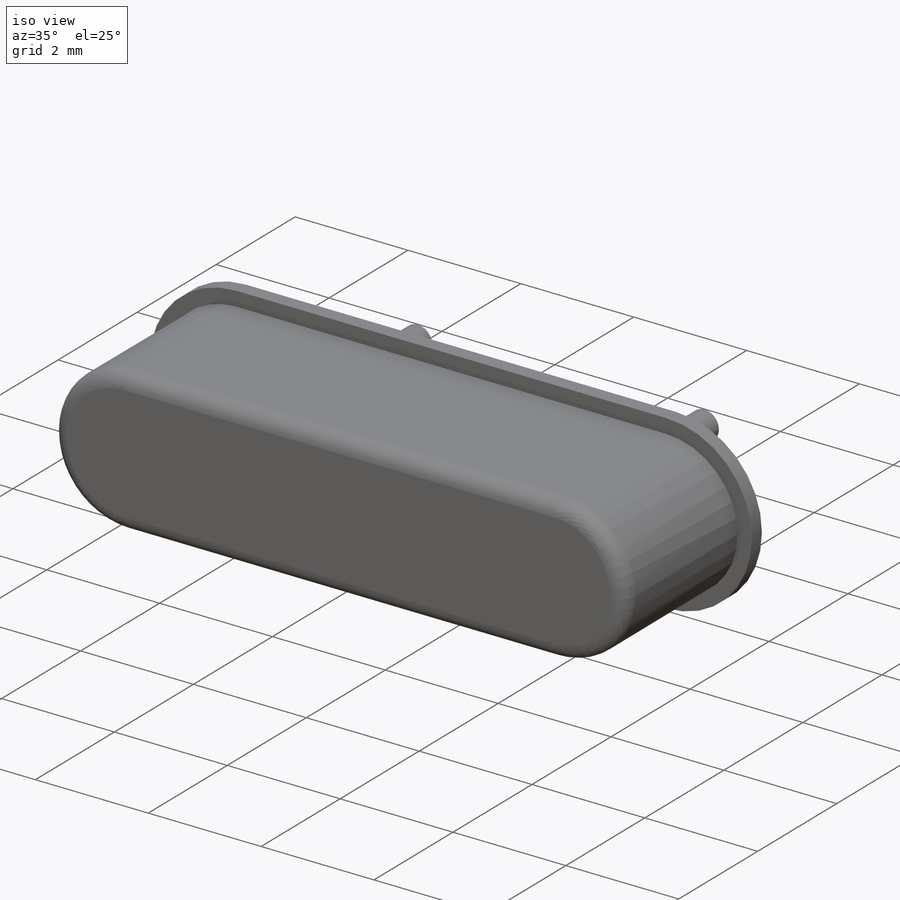
[diagram: iso view]
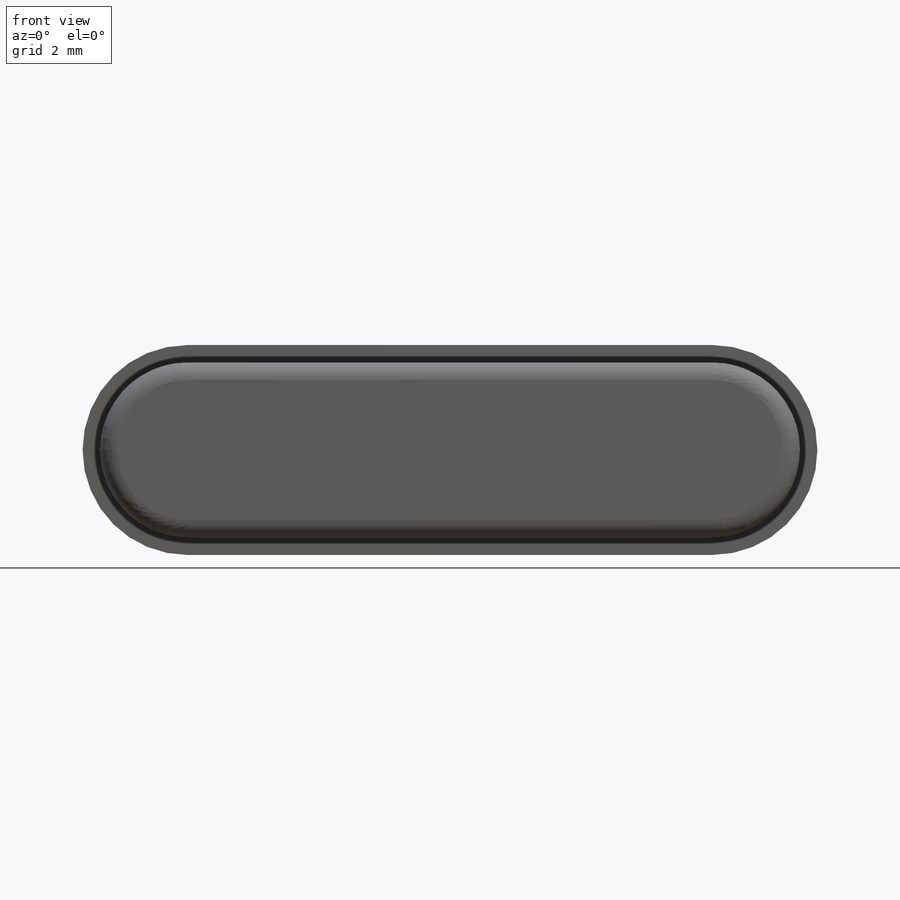
[diagram: front view]
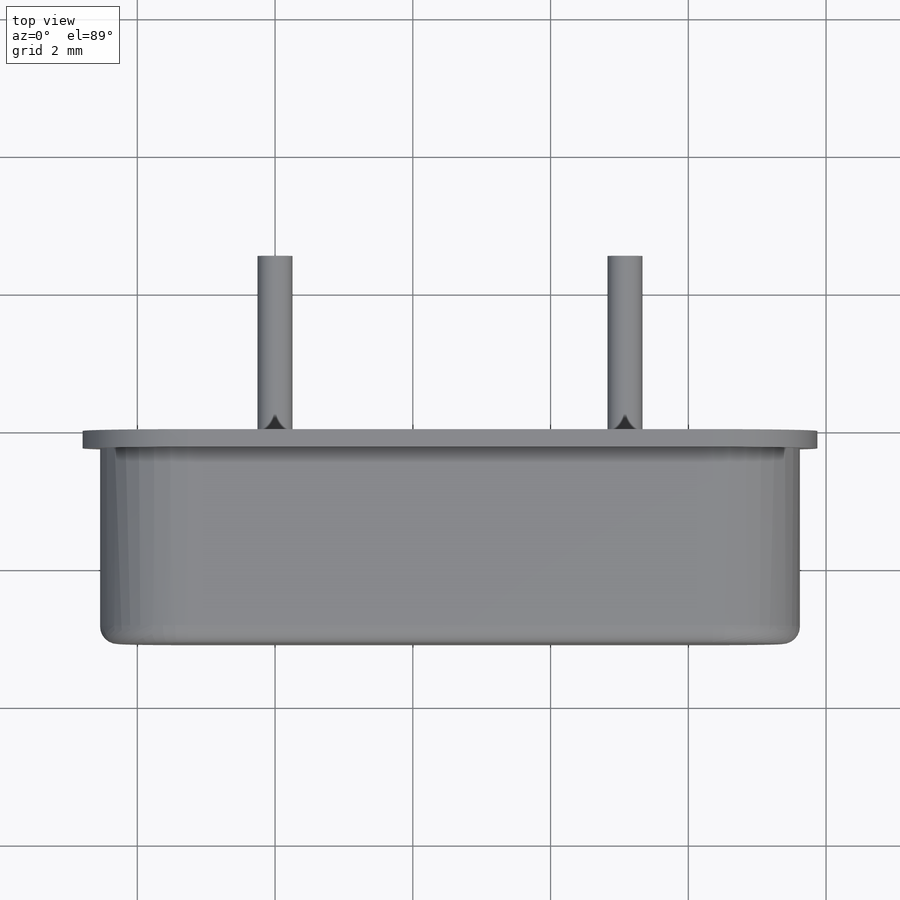
[diagram: top view]
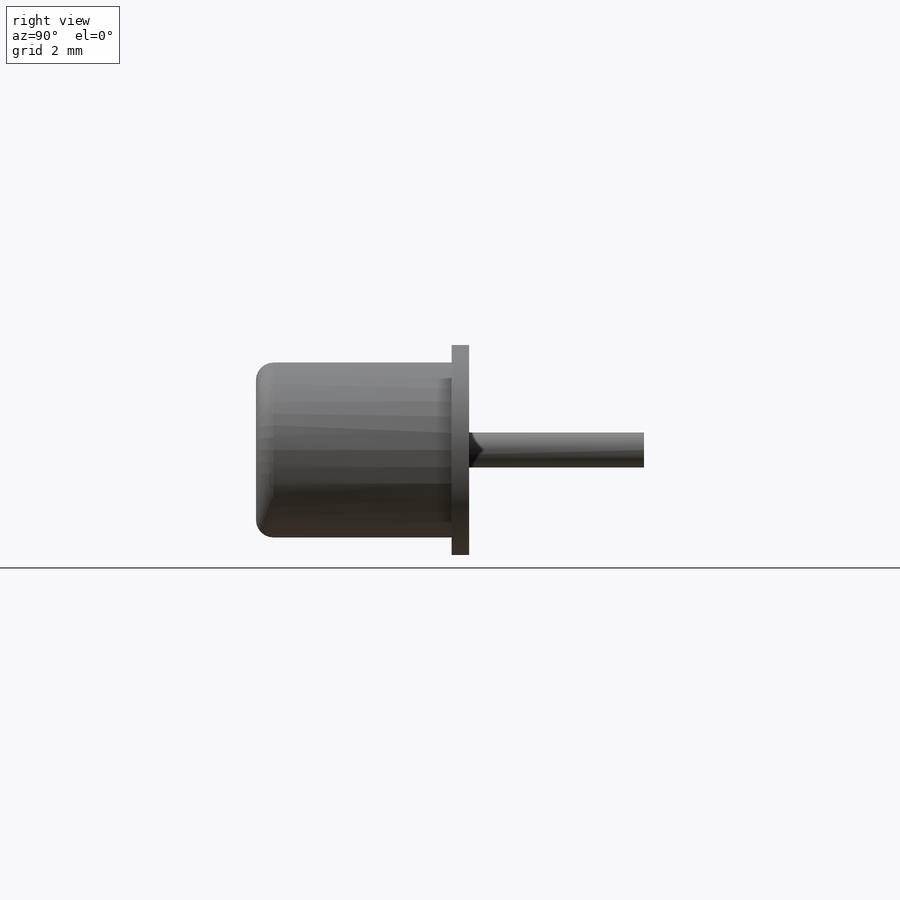
[diagram: right view]
SOLIDWORKS PART (.sldprt)
format: sldprt  version: not decoded by parser v0  size: 274,432 bytes
history: native  units: mm
features: plane x5, sketch x4, extrude x2, fillet x2, material x1, sweep x1, mirror x1 (+8 scaffold rows collapsed)
feature tree (24):
  scaffold x8  (default folders/planes/origin — collapsed)
  material  "Material <sin especificar>"
  plane  "x/y"
  plane  "x/z"
  plane  "y/z"
  sketch  "Sketch1"
  plane  "Plane4"
  sketch  "Sketch2"
  sweep  "Base-Sweep"
  sketch  "Sketch4"
  extrude  "Boss-Extrude1"  Depth=2.54mm
  fillet  "Fillet1"  Radius=1.27mm
  fillet  "Fillet2"  Radius=0.254mm
  plane  "Plane10"  Offset=2.54mm
  mirror  "Mirror5"
  sketch  "Sketch6"  dims[D1=0.254mm]
  extrude  "Boss-Extrude2"  Depth=0.254mm
decode coverage: 5 of 10 modeling features carry decoded parameters
note: suppression state not decoded; provenance and decode notes live in map.json
